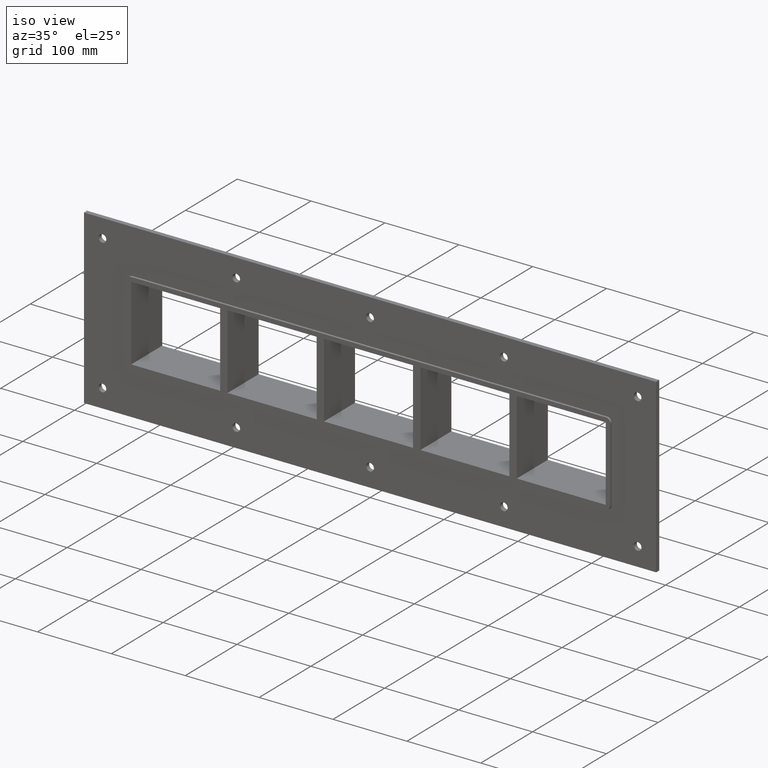
[diagram: clean part render]
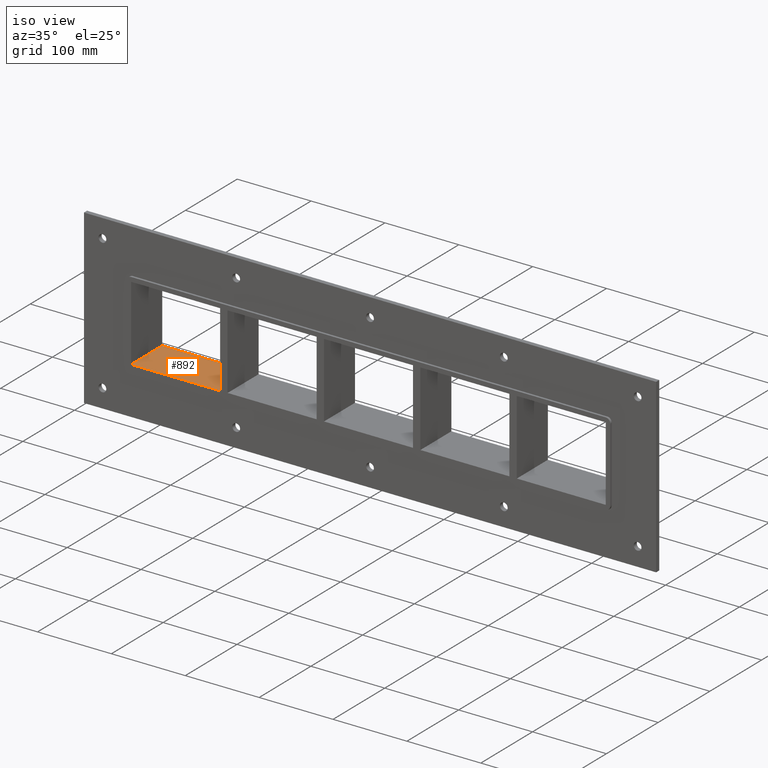
[diagram: same view with one face highlighted and labeled with its STEP entity id]
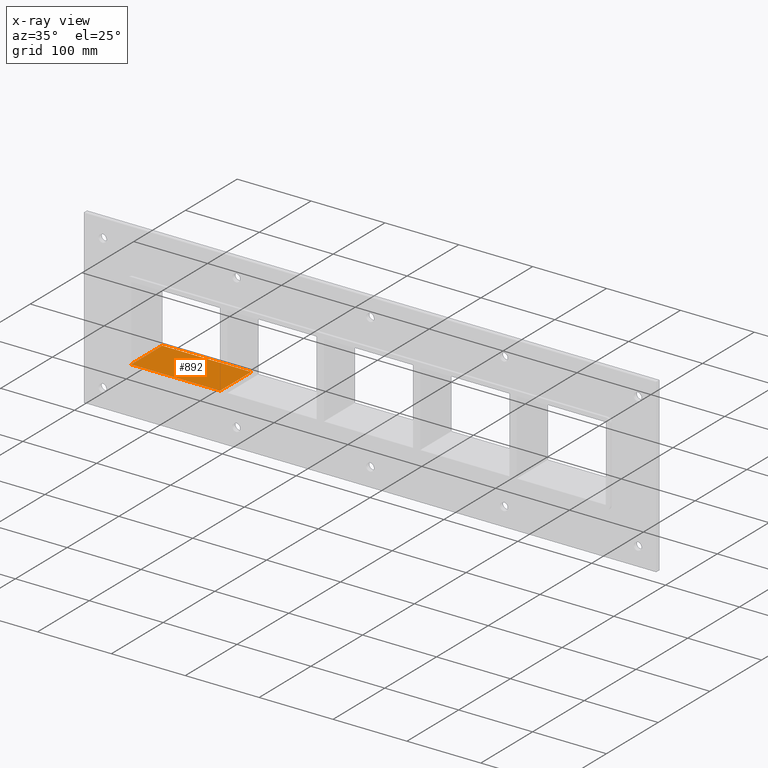
[diagram: x-ray of the same camera — body ghosted, the highlighted face saturated]
A machine part, iso view. The second image highlights one B-rep face of the part: STEP entity #892.
The next image is the same camera in x-ray: the body ghosted, the highlighted face saturated — about 0% of this face is hidden behind the body in this view.
In plain terms, the highlighted planar face has unit normal (0, 0, -1).
Its self-contained STEP definition (entity closure, byte-faithful):
#805=CARTESIAN_POINT('',(-200.75000000000202,-3.0,-50.499999999999972));
#806=VERTEX_POINT('',#805);
#823=CARTESIAN_POINT('',(-200.75000000000202,57.0,-50.499999999999972));
#824=VERTEX_POINT('',#823);
#831=CARTESIAN_POINT('',(-200.75000000000202,-3.0,-50.499999999999972));
#832=DIRECTION('',(0.0,1.0,0.0));
#833=VECTOR('',#832,60.000000000000007);
#834=LINE('',#831,#833);
#835=EDGE_CURVE('',#806,#824,#834,.T.);
#862=CARTESIAN_POINT('',(321.25000000000006,0.0,-50.499999999999972));
#863=DIRECTION('',(0.0,0.0,-1.0));
#864=DIRECTION('',(-1.0,0.0,0.0));
#865=AXIS2_PLACEMENT_3D('',#862,#863,#864);
#866=PLANE('',#865);
#867=ORIENTED_EDGE('',*,*,#835,.T.);
#868=CARTESIAN_POINT('',(-321.24999999999994,57.0,-50.499999999999972));
#869=VERTEX_POINT('',#868);
#870=CARTESIAN_POINT('',(-321.25,57.0,-50.499999999999972));
#871=DIRECTION('',(1.0,0.0,0.0));
#872=VECTOR('',#871,120.49999999999798);
#873=LINE('',#870,#872);
#874=EDGE_CURVE('',#869,#824,#873,.T.);
#875=ORIENTED_EDGE('',*,*,#874,.F.);
#876=CARTESIAN_POINT('',(-321.24999999999994,-3.0,-50.499999999999972));
#877=VERTEX_POINT('',#876);
#878=CARTESIAN_POINT('',(-321.25,-3.0,-50.499999999999972));
#879=DIRECTION('',(0.0,1.0,0.0));
#880=VECTOR('',#879,60.0);
#881=LINE('',#878,#880);
#882=EDGE_CURVE('',#877,#869,#881,.T.);
#883=ORIENTED_EDGE('',*,*,#882,.F.);
#884=CARTESIAN_POINT('',(-200.75000000000202,-3.0,-50.499999999999972));
#885=DIRECTION('',(-1.0,0.0,0.0));
#886=VECTOR('',#885,120.49999999999798);
#887=LINE('',#884,#886);
#888=EDGE_CURVE('',#806,#877,#887,.T.);
#889=ORIENTED_EDGE('',*,*,#888,.F.);
#890=EDGE_LOOP('',(#867,#875,#883,#889));
#891=FACE_OUTER_BOUND('',#890,.T.);
#892=ADVANCED_FACE('',(#891),#866,.F.);